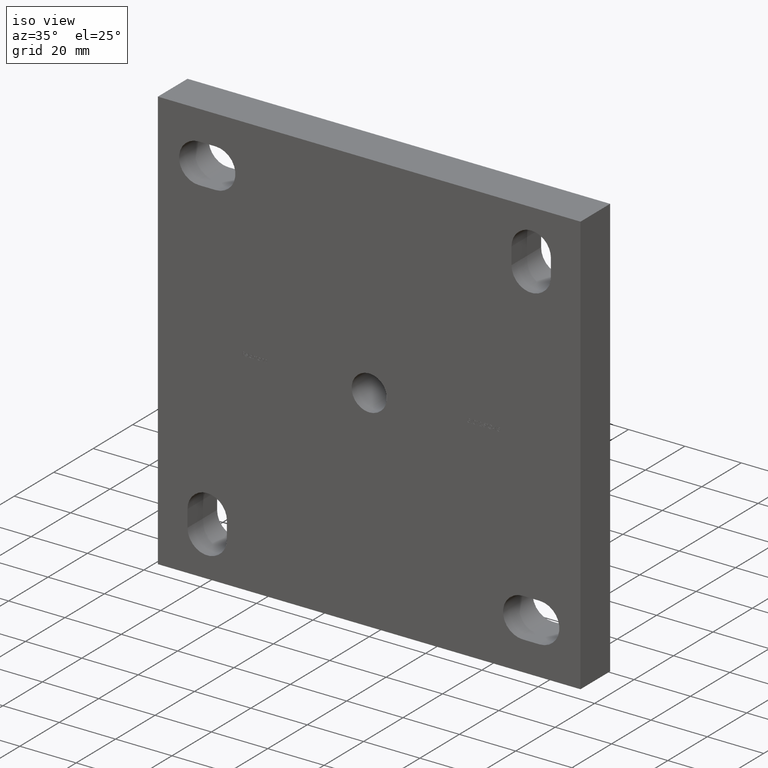
[diagram: clean part render]
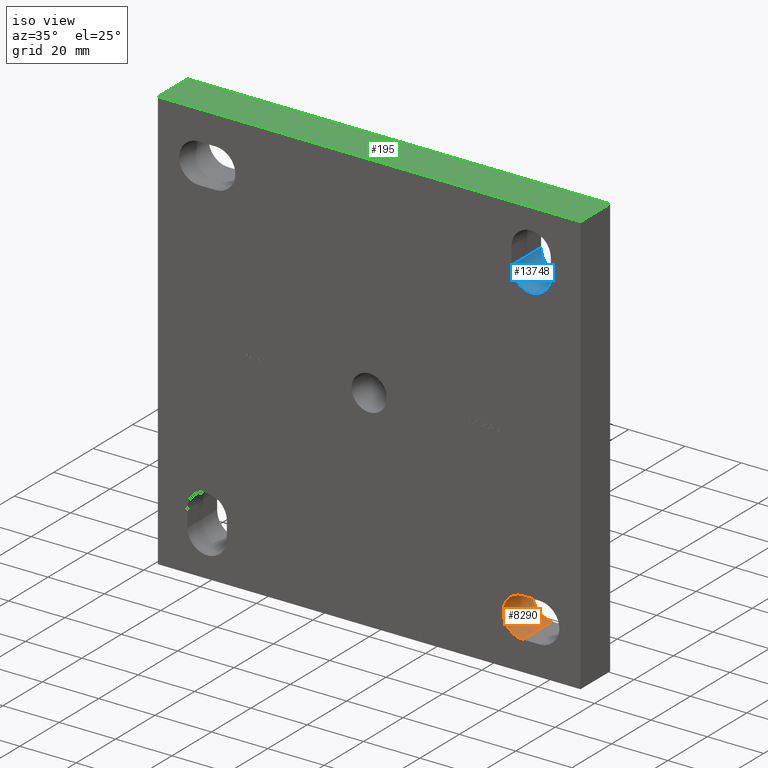
[diagram: same view with three faces highlighted in distinct colors, each labeled with its STEP entity id]
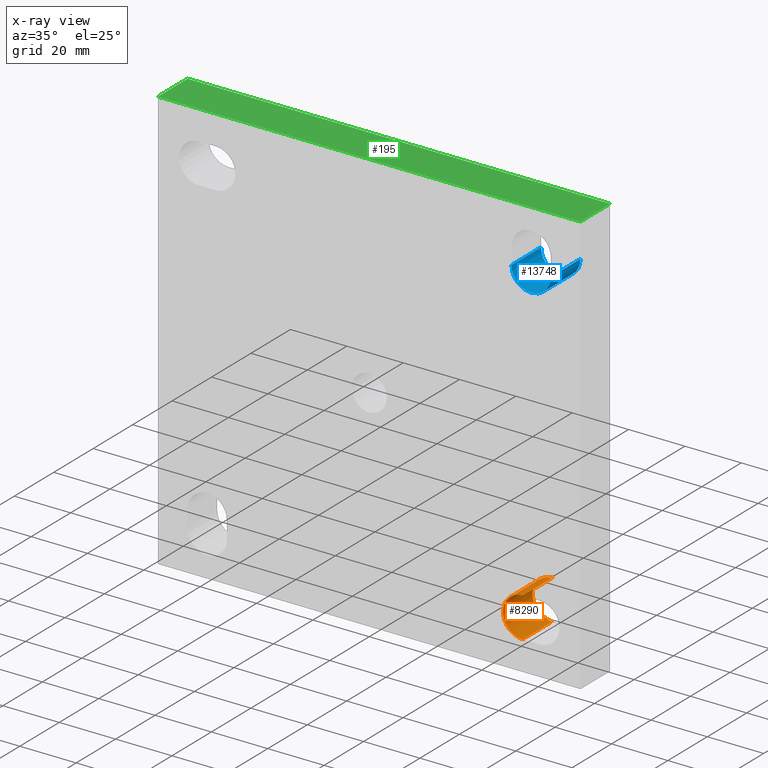
[diagram: x-ray of the same camera — body ghosted, the three highlighted faces saturated]
A machine part, iso view with three faces highlighted in distinct colors.
The next image is the same camera in x-ray (body ghosted, the three faces saturated) — at least one of them is partly hidden behind the body in this view.
Their STEP definitions:

[orange] entity #8290 — the highlighted cylindrical surface (edge-blend (fillet) strip) has radius 7 mm, axis along (-0, 1, -0).
#244 = VECTOR ( 'NONE', #12869, 1000.000000000000000 ) ;
#595 = EDGE_CURVE ( 'NONE', #8357, #5654, #4581, .T. ) ;
#1626 = AXIS2_PLACEMENT_3D ( 'NONE', #7548, #10737, #6562 ) ;
#2871 = CARTESIAN_POINT ( 'NONE',  ( 54.50000000000000711, 0.000000000000000000, -57.50000000000003553 ) ) ;
#2889 = ORIENTED_EDGE ( 'NONE', *, *, #13830, .T. ) ;
#2968 = LINE ( 'NONE', #5266, #244 ) ;
#3198 = CARTESIAN_POINT ( 'NONE',  ( 54.50000000000000711, 15.00000000000000000, -64.50000000000002842 ) ) ;
#3334 = CARTESIAN_POINT ( 'NONE',  ( 54.50000000000000711, 0.000000000000000000, -64.50000000000002842 ) ) ;
#3485 = CARTESIAN_POINT ( 'NONE',  ( 54.50000000000000711, 15.00000000000000000, -50.50000000000003553 ) ) ;
#3609 = LINE ( 'NONE', #3334, #8727 ) ;
#3767 = EDGE_LOOP ( 'NONE', ( #11100, #13483, #7895, #2889 ) ) ;
#3879 = FACE_OUTER_BOUND ( 'NONE', #3767, .T. ) ;
#4062 = AXIS2_PLACEMENT_3D ( 'NONE', #4779, #9217, #11260 ) ;
#4581 = CIRCLE ( 'NONE', #4062, 6.999999999999992006 ) ;
#4779 = CARTESIAN_POINT ( 'NONE',  ( 54.50000000000000711, 15.00000000000000000, -57.50000000000003553 ) ) ;
#5266 = CARTESIAN_POINT ( 'NONE',  ( 54.50000000000000711, 0.000000000000000000, -50.50000000000003553 ) ) ;
#5654 = VERTEX_POINT ( 'NONE', #3485 ) ;
#6019 = CIRCLE ( 'NONE', #1626, 6.999999999999992006 ) ;
#6562 = DIRECTION ( 'NONE',  ( 0.000000000000000000, 0.000000000000000000, 1.000000000000000000 ) ) ;
#7108 = DIRECTION ( 'NONE',  ( 0.000000000000000000, 0.000000000000000000, 1.000000000000000000 ) ) ;
#7548 = CARTESIAN_POINT ( 'NONE',  ( 54.50000000000000711, 0.000000000000000000, -57.50000000000003553 ) ) ;
#7895 = ORIENTED_EDGE ( 'NONE', *, *, #12497, .F. ) ;
#8290 = ADVANCED_FACE ( 'NONE', ( #3879 ), #12534, .F. ) ;
#8357 = VERTEX_POINT ( 'NONE', #3198 ) ;
#8727 = VECTOR ( 'NONE', #10940, 1000.000000000000000 ) ;
#9217 = DIRECTION ( 'NONE',  ( 0.000000000000000000, 1.000000000000000000, 0.000000000000000000 ) ) ;
#9256 = DIRECTION ( 'NONE',  ( -0.000000000000000000, 1.000000000000000000, -0.000000000000000000 ) ) ;
#10077 = VERTEX_POINT ( 'NONE', #11368 ) ;
#10737 = DIRECTION ( 'NONE',  ( 0.000000000000000000, 1.000000000000000000, 0.000000000000000000 ) ) ;
#10940 = DIRECTION ( 'NONE',  ( -0.000000000000000000, 1.000000000000000000, -0.000000000000000000 ) ) ;
#11100 = ORIENTED_EDGE ( 'NONE', *, *, #595, .T. ) ;
#11260 = DIRECTION ( 'NONE',  ( 0.000000000000000000, 0.000000000000000000, 1.000000000000000000 ) ) ;
#11340 = CARTESIAN_POINT ( 'NONE',  ( 54.50000000000000711, 0.000000000000000000, -50.50000000000003553 ) ) ;
#11368 = CARTESIAN_POINT ( 'NONE',  ( 54.50000000000000711, 0.000000000000000000, -64.50000000000002842 ) ) ;
#12492 = EDGE_CURVE ( 'NONE', #13671, #5654, #2968, .T. ) ;
#12497 = EDGE_CURVE ( 'NONE', #10077, #13671, #6019, .T. ) ;
#12534 = CYLINDRICAL_SURFACE ( 'NONE', #13405, 6.999999999999992006 ) ;
#12869 = DIRECTION ( 'NONE',  ( -0.000000000000000000, 1.000000000000000000, -0.000000000000000000 ) ) ;
#13405 = AXIS2_PLACEMENT_3D ( 'NONE', #2871, #9256, #7108 ) ;
#13483 = ORIENTED_EDGE ( 'NONE', *, *, #12492, .F. ) ;
#13671 = VERTEX_POINT ( 'NONE', #11340 ) ;
#13830 = EDGE_CURVE ( 'NONE', #10077, #8357, #3609, .T. ) ;

[blue] entity #13748 — the highlighted cylindrical surface (edge-blend (fillet) strip) has radius 7 mm, axis along (-0, 1, -0).
#446 = DIRECTION ( 'NONE',  ( -0.000000000000000000, 1.000000000000000000, -0.000000000000000000 ) ) ;
#770 = DIRECTION ( 'NONE',  ( 0.000000000000000000, 0.000000000000000000, 1.000000000000000000 ) ) ;
#2218 = VERTEX_POINT ( 'NONE', #13383 ) ;
#2225 = EDGE_CURVE ( 'NONE', #13411, #2218, #8833, .T. ) ;
#2586 = VERTEX_POINT ( 'NONE', #10276 ) ;
#2604 = FACE_OUTER_BOUND ( 'NONE', #13240, .T. ) ;
#3199 = VECTOR ( 'NONE', #446, 1000.000000000000000 ) ;
#5321 = ORIENTED_EDGE ( 'NONE', *, *, #13885, .T. ) ;
#6005 = CIRCLE ( 'NONE', #11539, 6.999999999999992006 ) ;
#6178 = AXIS2_PLACEMENT_3D ( 'NONE', #10568, #10425, #7432 ) ;
#6521 = LINE ( 'NONE', #10893, #7015 ) ;
#7015 = VECTOR ( 'NONE', #11080, 1000.000000000000000 ) ;
#7047 = CARTESIAN_POINT ( 'NONE',  ( 50.50000000000001421, 0.000000000000000000, 54.50000000000000711 ) ) ;
#7417 = CARTESIAN_POINT ( 'NONE',  ( 57.50000000000000711, 15.00000000000000000, 54.50000000000000000 ) ) ;
#7432 = DIRECTION ( 'NONE',  ( 0.000000000000000000, 0.000000000000000000, 1.000000000000000000 ) ) ;
#7450 = CARTESIAN_POINT ( 'NONE',  ( 57.50000000000000711, 0.000000000000000000, 54.50000000000000000 ) ) ;
#7823 = ORIENTED_EDGE ( 'NONE', *, *, #2225, .F. ) ;
#7885 = ORIENTED_EDGE ( 'NONE', *, *, #10213, .T. ) ;
#7945 = VERTEX_POINT ( 'NONE', #11211 ) ;
#8134 = ORIENTED_EDGE ( 'NONE', *, *, #13288, .F. ) ;
#8322 = DIRECTION ( 'NONE',  ( 0.000000000000000000, 1.000000000000000000, 0.000000000000000000 ) ) ;
#8452 = CARTESIAN_POINT ( 'NONE',  ( 50.50000000000001421, 0.000000000000000000, 54.50000000000000711 ) ) ;
#8595 = DIRECTION ( 'NONE',  ( 0.000000000000000000, 1.000000000000000000, 0.000000000000000000 ) ) ;
#8833 = LINE ( 'NONE', #7047, #3199 ) ;
#9298 = CIRCLE ( 'NONE', #13330, 6.999999999999992006 ) ;
#10213 = EDGE_CURVE ( 'NONE', #2586, #2218, #9298, .T. ) ;
#10276 = CARTESIAN_POINT ( 'NONE',  ( 64.50000000000000000, 15.00000000000000000, 54.50000000000000711 ) ) ;
#10425 = DIRECTION ( 'NONE',  ( -0.000000000000000000, 1.000000000000000000, -0.000000000000000000 ) ) ;
#10568 = CARTESIAN_POINT ( 'NONE',  ( 57.50000000000000711, 0.000000000000000000, 54.50000000000000000 ) ) ;
#10681 = DIRECTION ( 'NONE',  ( 0.000000000000000000, 0.000000000000000000, 1.000000000000000000 ) ) ;
#10893 = CARTESIAN_POINT ( 'NONE',  ( 64.50000000000000000, 0.000000000000000000, 54.50000000000000711 ) ) ;
#11080 = DIRECTION ( 'NONE',  ( -0.000000000000000000, 1.000000000000000000, -0.000000000000000000 ) ) ;
#11211 = CARTESIAN_POINT ( 'NONE',  ( 64.50000000000000000, 0.000000000000000000, 54.50000000000000711 ) ) ;
#11539 = AXIS2_PLACEMENT_3D ( 'NONE', #7450, #8595, #10681 ) ;
#13240 = EDGE_LOOP ( 'NONE', ( #7885, #7823, #8134, #5321 ) ) ;
#13288 = EDGE_CURVE ( 'NONE', #7945, #13411, #6005, .T. ) ;
#13330 = AXIS2_PLACEMENT_3D ( 'NONE', #7417, #8322, #770 ) ;
#13383 = CARTESIAN_POINT ( 'NONE',  ( 50.50000000000001421, 15.00000000000000000, 54.50000000000000711 ) ) ;
#13411 = VERTEX_POINT ( 'NONE', #8452 ) ;
#13748 = ADVANCED_FACE ( 'NONE', ( #2604 ), #13775, .F. ) ;
#13775 = CYLINDRICAL_SURFACE ( 'NONE', #6178, 6.999999999999992006 ) ;
#13885 = EDGE_CURVE ( 'NONE', #7945, #2586, #6521, .T. ) ;

[green] entity #195 — the highlighted planar face has unit normal (0, 0, -1).
#195 = ADVANCED_FACE ( 'NONE', ( #12593 ), #8668, .F. ) ;
#642 = LINE ( 'NONE', #4359, #8991 ) ;
#810 = LINE ( 'NONE', #6690, #12045 ) ;
#903 = EDGE_CURVE ( 'NONE', #1871, #9087, #6122, .T. ) ;
#1376 = DIRECTION ( 'NONE',  ( -0.000000000000000000, -1.000000000000000000, -0.000000000000000000 ) ) ;
#1827 = CARTESIAN_POINT ( 'NONE',  ( 75.00000000000001421, 0.000000000000000000, 75.00000000000001421 ) ) ;
#1871 = VERTEX_POINT ( 'NONE', #7437 ) ;
#2925 = CARTESIAN_POINT ( 'NONE',  ( 75.00000000000001421, 15.00000000000000000, 75.00000000000001421 ) ) ;
#3126 = LINE ( 'NONE', #14024, #5332 ) ;
#3145 = DIRECTION ( 'NONE',  ( -1.000000000000000000, 0.000000000000000000, -0.000000000000000000 ) ) ;
#3708 = EDGE_CURVE ( 'NONE', #8900, #1871, #810, .T. ) ;
#4359 = CARTESIAN_POINT ( 'NONE',  ( -74.99999999999998579, 15.00000000000000000, 75.00000000000001421 ) ) ;
#5332 = VECTOR ( 'NONE', #6468, 1000.000000000000000 ) ;
#5452 = DIRECTION ( 'NONE',  ( 1.000000000000000000, 0.000000000000000000, 0.000000000000000000 ) ) ;
#6122 = LINE ( 'NONE', #6415, #9358 ) ;
#6415 = CARTESIAN_POINT ( 'NONE',  ( -74.99999999999998579, 0.000000000000000000, 75.00000000000001421 ) ) ;
#6468 = DIRECTION ( 'NONE',  ( -0.000000000000000000, -1.000000000000000000, -0.000000000000000000 ) ) ;
#6542 = AXIS2_PLACEMENT_3D ( 'NONE', #13943, #7471, #3145 ) ;
#6690 = CARTESIAN_POINT ( 'NONE',  ( -74.99999999999998579, 15.00000000000000000, 75.00000000000001421 ) ) ;
#7437 = CARTESIAN_POINT ( 'NONE',  ( -74.99999999999998579, 0.000000000000000000, 75.00000000000001421 ) ) ;
#7471 = DIRECTION ( 'NONE',  ( 0.000000000000000000, 0.000000000000000000, -1.000000000000000000 ) ) ;
#7503 = ORIENTED_EDGE ( 'NONE', *, *, #12579, .F. ) ;
#8329 = ORIENTED_EDGE ( 'NONE', *, *, #3708, .T. ) ;
#8668 = PLANE ( 'NONE',  #6542 ) ;
#8900 = VERTEX_POINT ( 'NONE', #10974 ) ;
#8924 = EDGE_CURVE ( 'NONE', #8900, #12916, #642, .T. ) ;
#8991 = VECTOR ( 'NONE', #5452, 1000.000000000000000 ) ;
#9087 = VERTEX_POINT ( 'NONE', #1827 ) ;
#9358 = VECTOR ( 'NONE', #13873, 1000.000000000000000 ) ;
#9364 = ORIENTED_EDGE ( 'NONE', *, *, #903, .T. ) ;
#9757 = ORIENTED_EDGE ( 'NONE', *, *, #8924, .F. ) ;
#10133 = EDGE_LOOP ( 'NONE', ( #9364, #7503, #9757, #8329 ) ) ;
#10974 = CARTESIAN_POINT ( 'NONE',  ( -74.99999999999998579, 15.00000000000000000, 75.00000000000001421 ) ) ;
#12045 = VECTOR ( 'NONE', #1376, 1000.000000000000000 ) ;
#12579 = EDGE_CURVE ( 'NONE', #12916, #9087, #3126, .T. ) ;
#12593 = FACE_OUTER_BOUND ( 'NONE', #10133, .T. ) ;
#12916 = VERTEX_POINT ( 'NONE', #2925 ) ;
#13873 = DIRECTION ( 'NONE',  ( 1.000000000000000000, 0.000000000000000000, 0.000000000000000000 ) ) ;
#13943 = CARTESIAN_POINT ( 'NONE',  ( -74.99999999999998579, 15.00000000000000000, 75.00000000000001421 ) ) ;
#14024 = CARTESIAN_POINT ( 'NONE',  ( 75.00000000000001421, 15.00000000000000000, 75.00000000000001421 ) ) ;